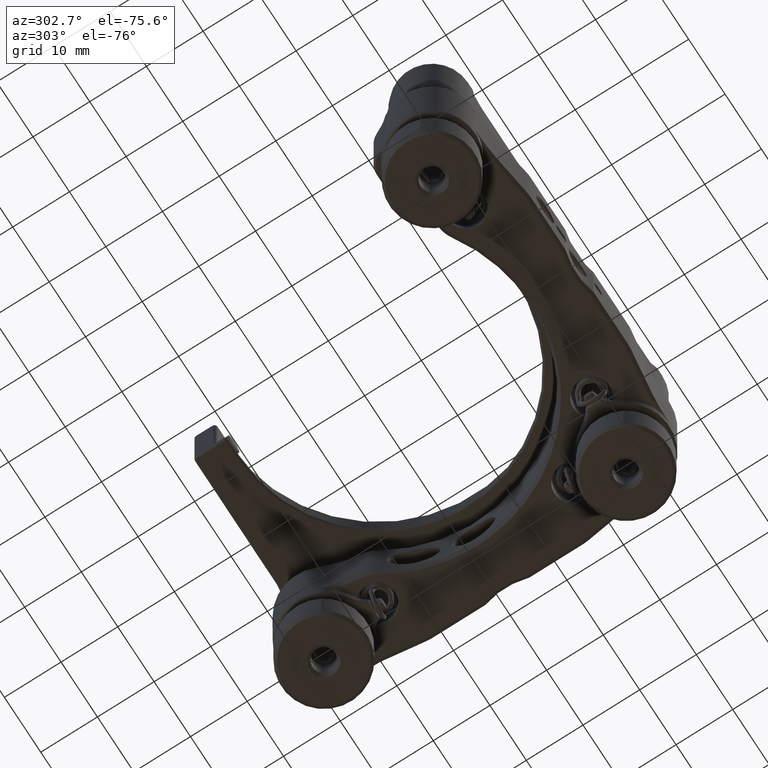
[diagram: clean part render]
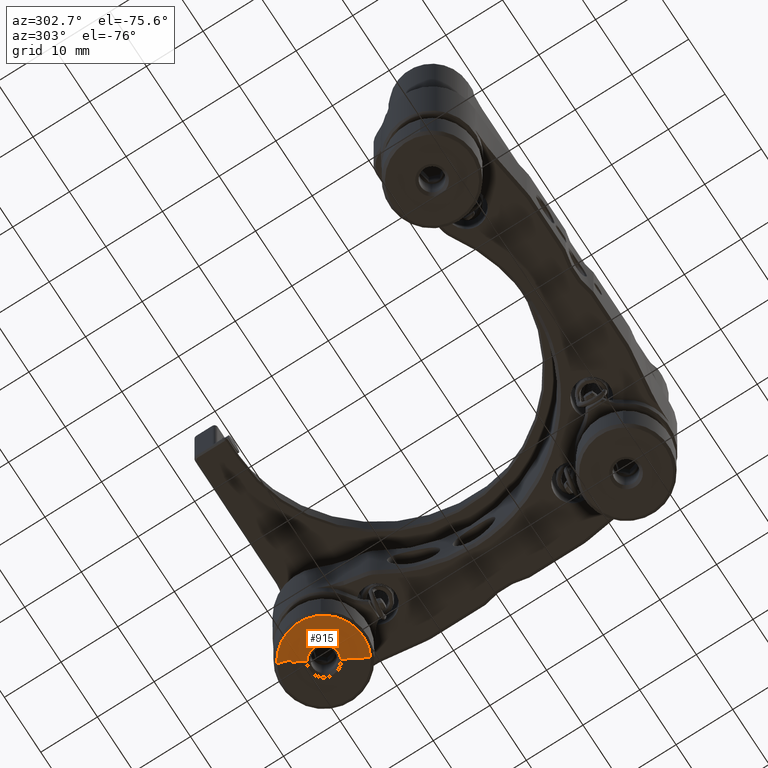
[diagram: same view with one face highlighted and labeled with its STEP entity id]
A machine part, auxiliary view. The second image highlights one B-rep face of the part: STEP entity #915.
In plain terms, the highlighted planar face has unit normal (0, -0, 1).
Its self-contained STEP definition (entity closure, byte-faithful):
#182 = EDGE_CURVE ( 'NONE', #2849, #13268, #20718, .T. ) ;
#915 = ADVANCED_FACE ( 'NONE', ( #10200 ), #12409, .F. ) ;
#1501 = DIRECTION ( 'NONE',  ( -0.8725423051460708956, -0.4885385611498654912, 0.000000000000000000 ) ) ;
#2151 = AXIS2_PLACEMENT_3D ( 'NONE', #7851, #24677, #24527 ) ;
#2309 = DIRECTION ( 'NONE',  ( 0.8725423051460705626, 0.4885385611498659908, 0.000000000000000000 ) ) ;
#2849 = VERTEX_POINT ( 'NONE', #26245 ) ;
#3583 = VECTOR ( 'NONE', #16830, 1000.000000000000114 ) ;
#4125 = ORIENTED_EDGE ( 'NONE', *, *, #4885, .F. ) ;
#4885 = EDGE_CURVE ( 'NONE', #26575, #5910, #25326, .T. ) ;
#5001 = LINE ( 'NONE', #7084, #3583 ) ;
#5811 = DIRECTION ( 'NONE',  ( -0.4885385611498666014, 0.8725423051460702295, 0.000000000000000000 ) ) ;
#5910 = VERTEX_POINT ( 'NONE', #25417 ) ;
#6090 = VECTOR ( 'NONE', #22827, 1000.000000000000000 ) ;
#6284 = CARTESIAN_POINT ( 'NONE',  ( 1.293431173105955123, 67.29924649506376966, -71.76659698038217527 ) ) ;
#6846 = CARTESIAN_POINT ( 'NONE',  ( 1.293431173105955123, 67.29924649506376966, -71.76659698043901869 ) ) ;
#7084 = CARTESIAN_POINT ( 'NONE',  ( 1.192760341727432838, 67.24288065145783833, -71.76659698038217527 ) ) ;
#7552 = EDGE_CURVE ( 'NONE', #21858, #26575, #13222, .T. ) ;
#7851 = CARTESIAN_POINT ( 'NONE',  ( 1.293431173105955123, 67.29924649506376966, -71.76659698038217527 ) ) ;
#8014 = EDGE_CURVE ( 'NONE', #13268, #13653, #5001, .T. ) ;
#9564 = DIRECTION ( 'NONE',  ( -0.2152086150560505728, -0.9765680990108455140, 0.000000000000000000 ) ) ;
#10200 = FACE_OUTER_BOUND ( 'NONE', #30437, .T. ) ;
#10531 = CARTESIAN_POINT ( 'NONE',  ( -2.126338754943108977, 73.40704263108625582, -71.76659698038217527 ) ) ;
#11436 = VECTOR ( 'NONE', #9564, 1000.000000000000114 ) ;
#11947 = ORIENTED_EDGE ( 'NONE', *, *, #24731, .F. ) ;
#12409 = PLANE ( 'NONE',  #2151 ) ;
#12602 = ORIENTED_EDGE ( 'NONE', *, *, #7552, .F. ) ;
#12832 = ORIENTED_EDGE ( 'NONE', *, *, #8014, .F. ) ;
#13053 = CARTESIAN_POINT ( 'NONE',  ( -1.352805738416421155, 70.78889469398171741, -71.76659698038217527 ) ) ;
#13222 = LINE ( 'NONE', #25335, #6090 ) ;
#13268 = VERTEX_POINT ( 'NONE', #16280 ) ;
#13653 = VERTEX_POINT ( 'NONE', #28675 ) ;
#14180 = EDGE_CURVE ( 'NONE', #5910, #2849, #22978, .T. ) ;
#14274 = DIRECTION ( 'NONE',  ( 0.000000000000000000, 0.000000000000000000, 1.000000000000000000 ) ) ;
#14297 = CARTESIAN_POINT ( 'NONE',  ( -1.194604684293520958, 71.50677535431717047, -71.76659698038217527 ) ) ;
#15788 = AXIS2_PLACEMENT_3D ( 'NONE', #6284, #14274, #2309 ) ;
#16280 = CARTESIAN_POINT ( 'NONE',  ( -0.02728470968938107727, 69.42191216749567673, -71.76659698043901869 ) ) ;
#16441 = DIRECTION ( 'NONE',  ( -0.000000000000000000, 0.000000000000000000, -1.000000000000000000 ) ) ;
#16830 = DIRECTION ( 'NONE',  ( -0.4885385611498666014, 0.8725423051460702295, 0.000000000000000000 ) ) ;
#17660 = ORIENTED_EDGE ( 'NONE', *, *, #182, .F. ) ;
#20718 = CIRCLE ( 'NONE', #22219, 2.499999999997724487 ) ;
#20763 = CARTESIAN_POINT ( 'NONE',  ( 1.192760341727431728, 67.24288065145783833, -71.76659698038217527 ) ) ;
#21447 = VECTOR ( 'NONE', #5811, 1000.000000000000114 ) ;
#21592 = ORIENTED_EDGE ( 'NONE', *, *, #14180, .F. ) ;
#21858 = VERTEX_POINT ( 'NONE', #13053 ) ;
#21984 = LINE ( 'NONE', #14297, #11436 ) ;
#22219 = AXIS2_PLACEMENT_3D ( 'NONE', #6846, #16441, #1501 ) ;
#22827 = DIRECTION ( 'NONE',  ( -0.2833425389486136092, 0.9590187722991418973, 0.000000000000000000 ) ) ;
#22978 = LINE ( 'NONE', #20763, #21447 ) ;
#24527 = DIRECTION ( 'NONE',  ( 0.8725423051460702295, 0.4885385611498666014, 0.000000000000000000 ) ) ;
#24677 = DIRECTION ( 'NONE',  ( 0.000000000000000000, -0.000000000000000000, 1.000000000000000000 ) ) ;
#24731 = EDGE_CURVE ( 'NONE', #13653, #21858, #21984, .T. ) ;
#25326 = CIRCLE ( 'NONE', #15788, 6.999999999999990230 ) ;
#25335 = CARTESIAN_POINT ( 'NONE',  ( -1.352805738416422043, 70.78889469398171741, -71.76659698038217527 ) ) ;
#25417 = CARTESIAN_POINT ( 'NONE',  ( 4.612065717452635383, 61.13591421771016599, -71.76659698038217527 ) ) ;
#26245 = CARTESIAN_POINT ( 'NONE',  ( 2.412805393144849209, 65.06384913541904780, -71.76659698041059698 ) ) ;
#26575 = VERTEX_POINT ( 'NONE', #10531 ) ;
#28675 = CARTESIAN_POINT ( 'NONE',  ( -1.194604684293520958, 71.50677535431717047, -71.76659698038217527 ) ) ;
#30437 = EDGE_LOOP ( 'NONE', ( #17660, #21592, #4125, #12602, #11947, #12832 ) ) ;